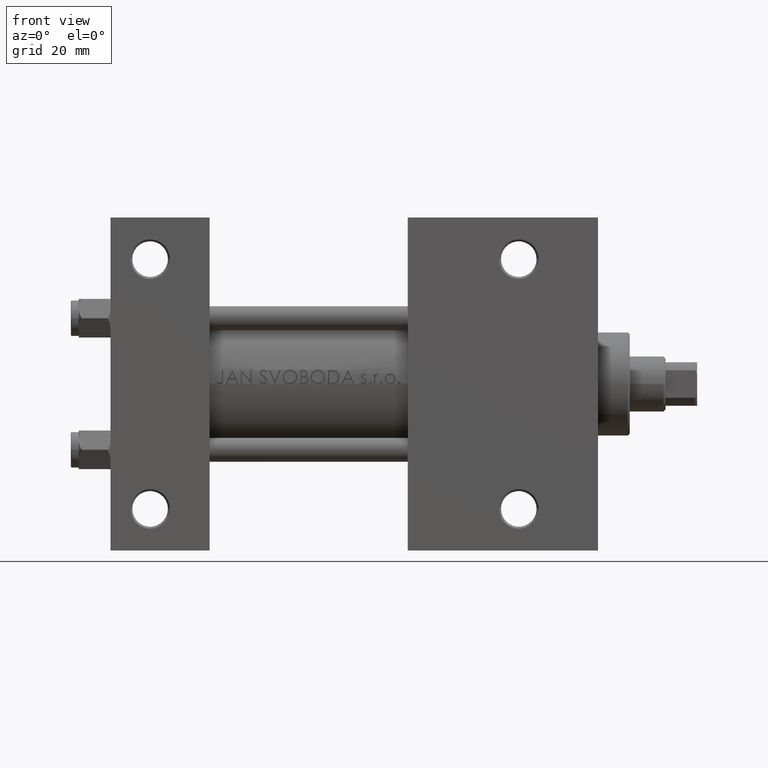
[diagram: clean part render]
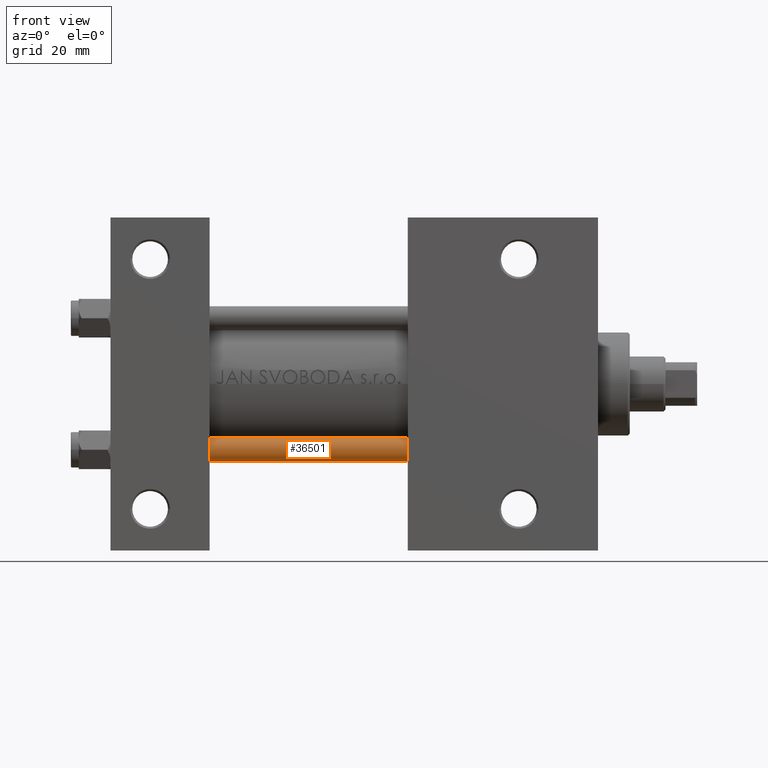
[diagram: same view with one face highlighted and labeled with its STEP entity id]
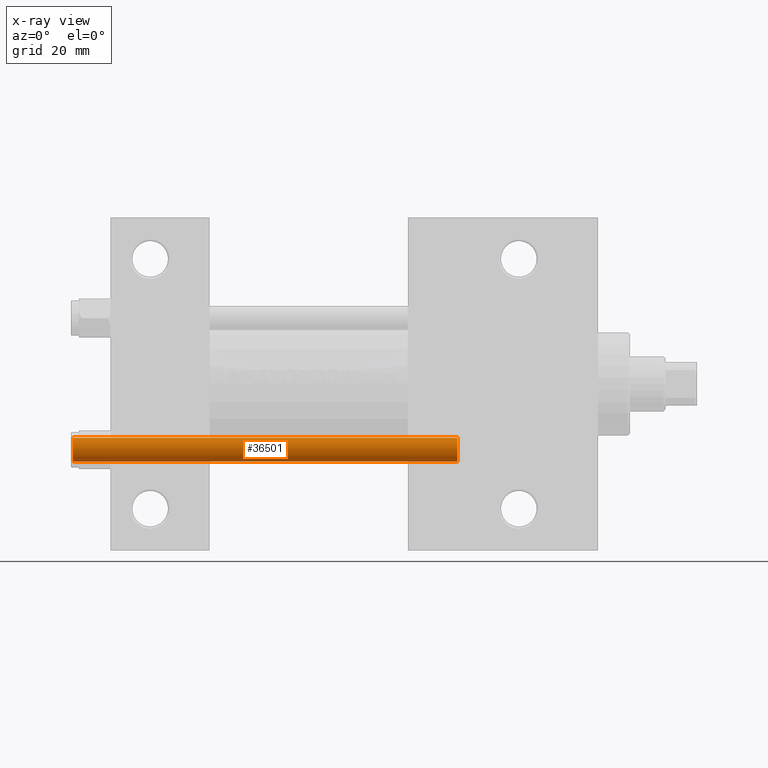
[diagram: x-ray of the same camera — body ghosted, the highlighted face saturated]
A machine part, front view. The second image highlights one B-rep face of the part: STEP entity #36501.
The next image is the same camera in x-ray: the body ghosted, the highlighted face saturated — about 0% of this face is hidden behind the body in this view.
In plain terms, the highlighted cylindrical surface (edge-blend (fillet) strip) has radius 3 mm, axis along (-1, 0, 0).
Its self-contained STEP definition (entity closure, byte-faithful):
#200 = DIRECTION ( 'NONE',  ( 1.000000000000000000, 0.000000000000000000, 0.000000000000000000 ) ) ;
#1767 = EDGE_CURVE ( 'NONE', #5869, #16440, #5647, .T. ) ;
#3821 = DIRECTION ( 'NONE',  ( -0.000000000000000000, -0.000000000000000000, 1.000000000000000000 ) ) ;
#4759 = AXIS2_PLACEMENT_3D ( 'NONE', #41744, #15517, #44616 ) ;
#4874 = CARTESIAN_POINT ( 'NONE',  ( -3.000000000000000444, 0.000000000000000000, 98.00000000000000000 ) ) ;
#5647 = CIRCLE ( 'NONE', #42525, 3.000000000000000444 ) ;
#5869 = VERTEX_POINT ( 'NONE', #25632 ) ;
#7496 = ORIENTED_EDGE ( 'NONE', *, *, #10290, .T. ) ;
#10290 = EDGE_CURVE ( 'NONE', #46303, #15506, #18877, .T. ) ;
#14945 = LINE ( 'NONE', #26260, #40000 ) ;
#14979 = LINE ( 'NONE', #4874, #25845 ) ;
#15363 = CARTESIAN_POINT ( 'NONE',  ( 0.000000000000000000, 0.000000000000000000, 0.5000000000000281997 ) ) ;
#15506 = VERTEX_POINT ( 'NONE', #26349 ) ;
#15517 = DIRECTION ( 'NONE',  ( -0.000000000000000000, -0.000000000000000000, -1.000000000000000000 ) ) ;
#16440 = VERTEX_POINT ( 'NONE', #47203 ) ;
#16621 = ORIENTED_EDGE ( 'NONE', *, *, #28567, .T. ) ;
#18877 = CIRCLE ( 'NONE', #21972, 3.000000000000000444 ) ;
#21078 = CARTESIAN_POINT ( 'NONE',  ( 0.000000000000000000, 0.000000000000000000, 97.50000000000001421 ) ) ;
#21972 = AXIS2_PLACEMENT_3D ( 'NONE', #21078, #35734, #27575 ) ;
#22698 = DIRECTION ( 'NONE',  ( -0.000000000000000000, -0.000000000000000000, -1.000000000000000000 ) ) ;
#25632 = CARTESIAN_POINT ( 'NONE',  ( 3.000000000000000444, 3.673940397442060361E-16, 0.5000000000000281997 ) ) ;
#25845 = VECTOR ( 'NONE', #22698, 1000.000000000000000 ) ;
#26260 = CARTESIAN_POINT ( 'NONE',  ( 3.000000000000000444, 3.673940397442060361E-16, 98.00000000000000000 ) ) ;
#26349 = CARTESIAN_POINT ( 'NONE',  ( 3.000000000000000444, 3.673940397442060361E-16, 97.50000000000001421 ) ) ;
#27575 = DIRECTION ( 'NONE',  ( 1.000000000000000000, 0.000000000000000000, 0.000000000000000000 ) ) ;
#28567 = EDGE_CURVE ( 'NONE', #15506, #5869, #14945, .T. ) ;
#32341 = ORIENTED_EDGE ( 'NONE', *, *, #1767, .T. ) ;
#33219 = DIRECTION ( 'NONE',  ( -0.000000000000000000, -0.000000000000000000, -1.000000000000000000 ) ) ;
#35734 = DIRECTION ( 'NONE',  ( 0.000000000000000000, 0.000000000000000000, -1.000000000000000000 ) ) ;
#36501 = ADVANCED_FACE ( 'NONE', ( #45340 ), #37423, .T. ) ;
#37423 = CYLINDRICAL_SURFACE ( 'NONE', #4759, 3.000000000000000444 ) ;
#40000 = VECTOR ( 'NONE', #33219, 1000.000000000000000 ) ;
#41040 = EDGE_LOOP ( 'NONE', ( #7496, #16621, #32341, #41141 ) ) ;
#41141 = ORIENTED_EDGE ( 'NONE', *, *, #46852, .F. ) ;
#41744 = CARTESIAN_POINT ( 'NONE',  ( 0.000000000000000000, 0.000000000000000000, 98.00000000000000000 ) ) ;
#42525 = AXIS2_PLACEMENT_3D ( 'NONE', #15363, #3821, #200 ) ;
#44616 = DIRECTION ( 'NONE',  ( -1.000000000000000000, 0.000000000000000000, 0.000000000000000000 ) ) ;
#44667 = CARTESIAN_POINT ( 'NONE',  ( -3.000000000000000444, 0.000000000000000000, 97.50000000000001421 ) ) ;
#45340 = FACE_OUTER_BOUND ( 'NONE', #41040, .T. ) ;
#46303 = VERTEX_POINT ( 'NONE', #44667 ) ;
#46852 = EDGE_CURVE ( 'NONE', #46303, #16440, #14979, .T. ) ;
#47203 = CARTESIAN_POINT ( 'NONE',  ( -3.000000000000000444, 0.000000000000000000, 0.5000000000000281997 ) ) ;